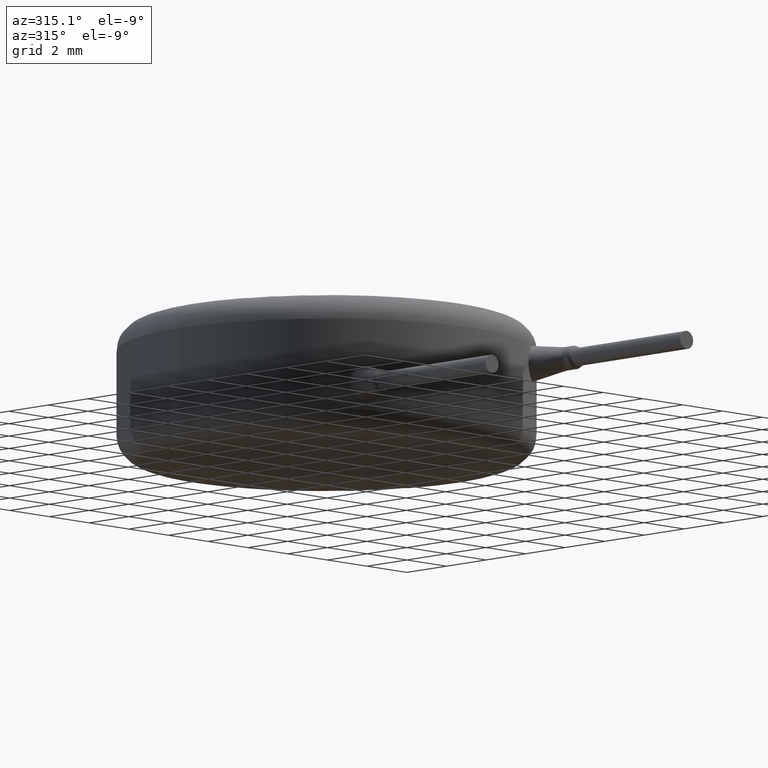
[diagram: clean part render]
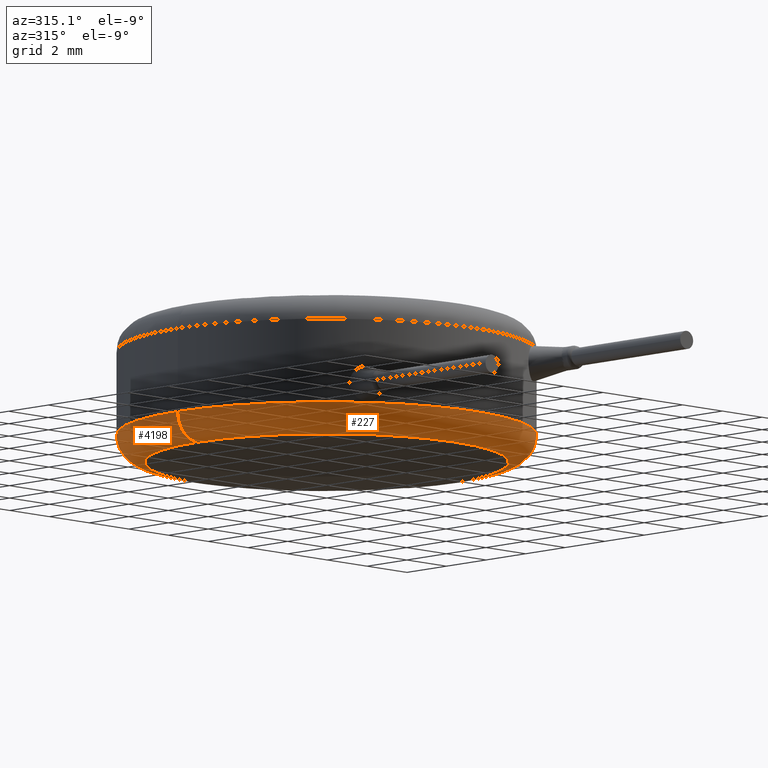
[diagram: same view with one multi-face feature highlighted, each face labeled with its STEP entity id]
A machine part, auxiliary view. The highlighted faces form ONE feature: a constant-radius fillet chain: 2 tangent blend faces with common blend radius 1 mm. The faces share edges in the B-rep.
Their STEP definitions:
[1] entity #227 (Torus):
#132 = ORIENTED_EDGE ( 'NONE', *, *, #3131, .F. ) ;
#226 = VERTEX_POINT ( 'NONE', #519 ) ;
#227 = ADVANCED_FACE ( 'NONE', ( #2138 ), #1790, .T. ) ;
#341 = AXIS2_PLACEMENT_3D ( 'NONE', #3102, #1144, #2472 ) ;
#436 = VERTEX_POINT ( 'NONE', #1327 ) ;
#519 = CARTESIAN_POINT ( 'NONE',  ( 7.500000000000000000, 9.184850993605147900E-016, 1.000000000000000000 ) ) ;
#574 = DIRECTION ( 'NONE',  ( 0.0000000000000000000, 0.0000000000000000000, 1.000000000000000000 ) ) ;
#738 = EDGE_LOOP ( 'NONE', ( #132, #1794, #3116, #3126 ) ) ;
#804 = CARTESIAN_POINT ( 'NONE',  ( -7.500000000000000000, 0.0000000000000000000, 1.000000000000000000 ) ) ;
#807 = CIRCLE ( 'NONE', #1408, 1.000000000000000000 ) ;
#851 = EDGE_CURVE ( 'NONE', #2580, #226, #3900, .T. ) ;
#1144 = DIRECTION ( 'NONE',  ( 1.224646799147353200E-016, 1.000000000000000000, -0.0000000000000000000 ) ) ;
#1155 = CIRCLE ( 'NONE', #3882, 6.500000000000000000 ) ;
#1224 = CARTESIAN_POINT ( 'NONE',  ( 0.0000000000000000000, 0.0000000000000000000, 1.000000000000000000 ) ) ;
#1265 = CARTESIAN_POINT ( 'NONE',  ( 6.500000000000000000, 0.0000000000000000000, 1.000000000000000000 ) ) ;
#1327 = CARTESIAN_POINT ( 'NONE',  ( 6.500000000000000000, 0.0000000000000000000, 0.0000000000000000000 ) ) ;
#1408 = AXIS2_PLACEMENT_3D ( 'NONE', #1265, #1582, #3546 ) ;
#1565 = DIRECTION ( 'NONE',  ( 0.0000000000000000000, 0.0000000000000000000, 1.000000000000000000 ) ) ;
#1582 = DIRECTION ( 'NONE',  ( 0.0000000000000000000, -1.000000000000000000, 0.0000000000000000000 ) ) ;
#1790 = TOROIDAL_SURFACE ( 'NONE', #1809, 6.500000000000000000, 1.000000000000000000 ) ;
#1794 = ORIENTED_EDGE ( 'NONE', *, *, #2784, .F. ) ;
#1809 = AXIS2_PLACEMENT_3D ( 'NONE', #2156, #1565, #3463 ) ;
#1923 = AXIS2_PLACEMENT_3D ( 'NONE', #1224, #574, #2869 ) ;
#1964 = DIRECTION ( 'NONE',  ( 1.000000000000000000, 0.0000000000000000000, 0.0000000000000000000 ) ) ;
#2138 = FACE_OUTER_BOUND ( 'NONE', #738, .T. ) ;
#2156 = CARTESIAN_POINT ( 'NONE',  ( 0.0000000000000000000, 0.0000000000000000000, 1.000000000000000000 ) ) ;
#2472 = DIRECTION ( 'NONE',  ( -1.000000000000000000, 1.224646799147352500E-016, 0.0000000000000000000 ) ) ;
#2580 = VERTEX_POINT ( 'NONE', #804 ) ;
#2636 = CARTESIAN_POINT ( 'NONE',  ( 0.0000000000000000000, 0.0000000000000000000, 0.0000000000000000000 ) ) ;
#2695 = VERTEX_POINT ( 'NONE', #3819 ) ;
#2729 = EDGE_CURVE ( 'NONE', #436, #226, #807, .T. ) ;
#2784 = EDGE_CURVE ( 'NONE', #436, #2695, #1155, .T. ) ;
#2869 = DIRECTION ( 'NONE',  ( 1.000000000000000000, 0.0000000000000000000, 0.0000000000000000000 ) ) ;
#3102 = CARTESIAN_POINT ( 'NONE',  ( -6.500000000000000000, 7.960204194457795500E-016, 1.000000000000000000 ) ) ;
#3116 = ORIENTED_EDGE ( 'NONE', *, *, #2729, .T. ) ;
#3126 = ORIENTED_EDGE ( 'NONE', *, *, #851, .F. ) ;
#3131 = EDGE_CURVE ( 'NONE', #2695, #2580, #4195, .T. ) ;
#3463 = DIRECTION ( 'NONE',  ( 1.000000000000000000, 0.0000000000000000000, 0.0000000000000000000 ) ) ;
#3546 = DIRECTION ( 'NONE',  ( 0.0000000000000000000, 0.0000000000000000000, -1.000000000000000000 ) ) ;
#3819 = CARTESIAN_POINT ( 'NONE',  ( -6.500000000000000000, 8.572527594031472200E-016, 0.0000000000000000000 ) ) ;
#3882 = AXIS2_PLACEMENT_3D ( 'NONE', #2636, #3953, #1964 ) ;
#3900 = CIRCLE ( 'NONE', #1923, 7.500000000000000000 ) ;
#3953 = DIRECTION ( 'NONE',  ( -0.0000000000000000000, -0.0000000000000000000, -1.000000000000000000 ) ) ;
#4195 = CIRCLE ( 'NONE', #341, 1.000000000000000000 ) ;
[2] entity #4198 (Torus):
#216 = CARTESIAN_POINT ( 'NONE',  ( 0.0000000000000000000, 0.0000000000000000000, 1.000000000000000000 ) ) ;
#226 = VERTEX_POINT ( 'NONE', #519 ) ;
#253 = DIRECTION ( 'NONE',  ( 0.0000000000000000000, 0.0000000000000000000, 1.000000000000000000 ) ) ;
#265 = FACE_OUTER_BOUND ( 'NONE', #2269, .T. ) ;
#341 = AXIS2_PLACEMENT_3D ( 'NONE', #3102, #1144, #2472 ) ;
#373 = ORIENTED_EDGE ( 'NONE', *, *, #3171, .F. ) ;
#436 = VERTEX_POINT ( 'NONE', #1327 ) ;
#519 = CARTESIAN_POINT ( 'NONE',  ( 7.500000000000000000, 9.184850993605147900E-016, 1.000000000000000000 ) ) ;
#551 = AXIS2_PLACEMENT_3D ( 'NONE', #1628, #3218, #2221 ) ;
#702 = CIRCLE ( 'NONE', #551, 6.500000000000000000 ) ;
#804 = CARTESIAN_POINT ( 'NONE',  ( -7.500000000000000000, 0.0000000000000000000, 1.000000000000000000 ) ) ;
#807 = CIRCLE ( 'NONE', #1408, 1.000000000000000000 ) ;
#1144 = DIRECTION ( 'NONE',  ( 1.224646799147353200E-016, 1.000000000000000000, -0.0000000000000000000 ) ) ;
#1176 = ORIENTED_EDGE ( 'NONE', *, *, #2729, .F. ) ;
#1265 = CARTESIAN_POINT ( 'NONE',  ( 6.500000000000000000, 0.0000000000000000000, 1.000000000000000000 ) ) ;
#1327 = CARTESIAN_POINT ( 'NONE',  ( 6.500000000000000000, 0.0000000000000000000, 0.0000000000000000000 ) ) ;
#1346 = TOROIDAL_SURFACE ( 'NONE', #3066, 6.500000000000000000, 1.000000000000000000 ) ;
#1408 = AXIS2_PLACEMENT_3D ( 'NONE', #1265, #1582, #3546 ) ;
#1582 = DIRECTION ( 'NONE',  ( 0.0000000000000000000, -1.000000000000000000, 0.0000000000000000000 ) ) ;
#1628 = CARTESIAN_POINT ( 'NONE',  ( 0.0000000000000000000, 0.0000000000000000000, 0.0000000000000000000 ) ) ;
#1845 = ORIENTED_EDGE ( 'NONE', *, *, #4160, .F. ) ;
#2221 = DIRECTION ( 'NONE',  ( 1.000000000000000000, 0.0000000000000000000, 0.0000000000000000000 ) ) ;
#2269 = EDGE_LOOP ( 'NONE', ( #373, #2776, #1845, #1176 ) ) ;
#2472 = DIRECTION ( 'NONE',  ( -1.000000000000000000, 1.224646799147352500E-016, 0.0000000000000000000 ) ) ;
#2555 = DIRECTION ( 'NONE',  ( 1.000000000000000000, 0.0000000000000000000, 0.0000000000000000000 ) ) ;
#2580 = VERTEX_POINT ( 'NONE', #804 ) ;
#2695 = VERTEX_POINT ( 'NONE', #3819 ) ;
#2729 = EDGE_CURVE ( 'NONE', #436, #226, #807, .T. ) ;
#2776 = ORIENTED_EDGE ( 'NONE', *, *, #3131, .T. ) ;
#2823 = DIRECTION ( 'NONE',  ( 1.000000000000000000, 0.0000000000000000000, 0.0000000000000000000 ) ) ;
#2855 = CARTESIAN_POINT ( 'NONE',  ( 0.0000000000000000000, 0.0000000000000000000, 1.000000000000000000 ) ) ;
#3066 = AXIS2_PLACEMENT_3D ( 'NONE', #2855, #253, #2555 ) ;
#3102 = CARTESIAN_POINT ( 'NONE',  ( -6.500000000000000000, 7.960204194457795500E-016, 1.000000000000000000 ) ) ;
#3131 = EDGE_CURVE ( 'NONE', #2695, #2580, #4195, .T. ) ;
#3171 = EDGE_CURVE ( 'NONE', #2695, #436, #702, .T. ) ;
#3218 = DIRECTION ( 'NONE',  ( -0.0000000000000000000, -0.0000000000000000000, -1.000000000000000000 ) ) ;
#3378 = CIRCLE ( 'NONE', #3945, 7.500000000000000000 ) ;
#3500 = DIRECTION ( 'NONE',  ( 0.0000000000000000000, 0.0000000000000000000, 1.000000000000000000 ) ) ;
#3546 = DIRECTION ( 'NONE',  ( 0.0000000000000000000, 0.0000000000000000000, -1.000000000000000000 ) ) ;
#3819 = CARTESIAN_POINT ( 'NONE',  ( -6.500000000000000000, 8.572527594031472200E-016, 0.0000000000000000000 ) ) ;
#3945 = AXIS2_PLACEMENT_3D ( 'NONE', #216, #3500, #2823 ) ;
#4160 = EDGE_CURVE ( 'NONE', #226, #2580, #3378, .T. ) ;
#4195 = CIRCLE ( 'NONE', #341, 1.000000000000000000 ) ;
#4198 = ADVANCED_FACE ( 'NONE', ( #265 ), #1346, .T. ) ;